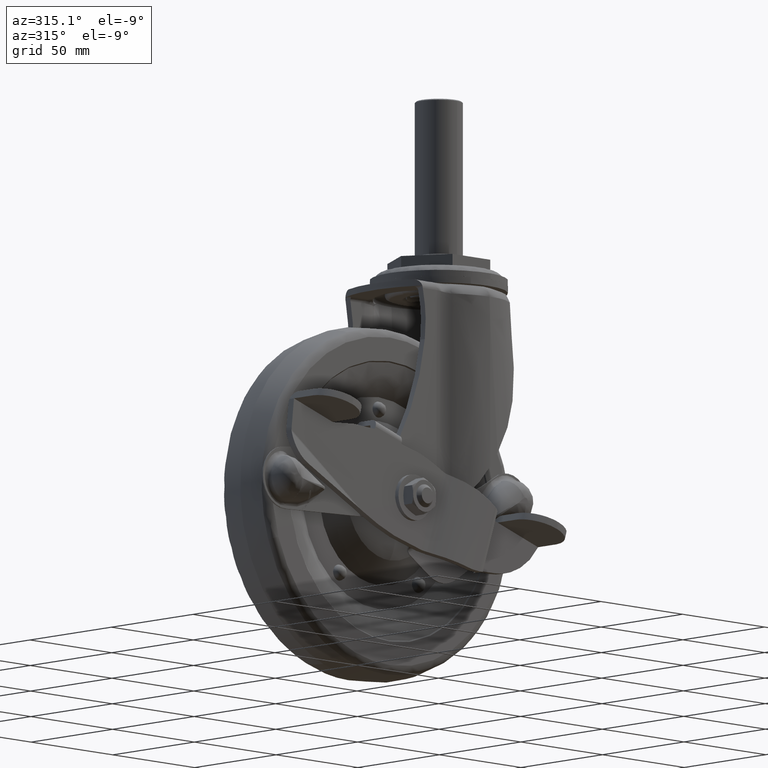
[diagram: clean part render]
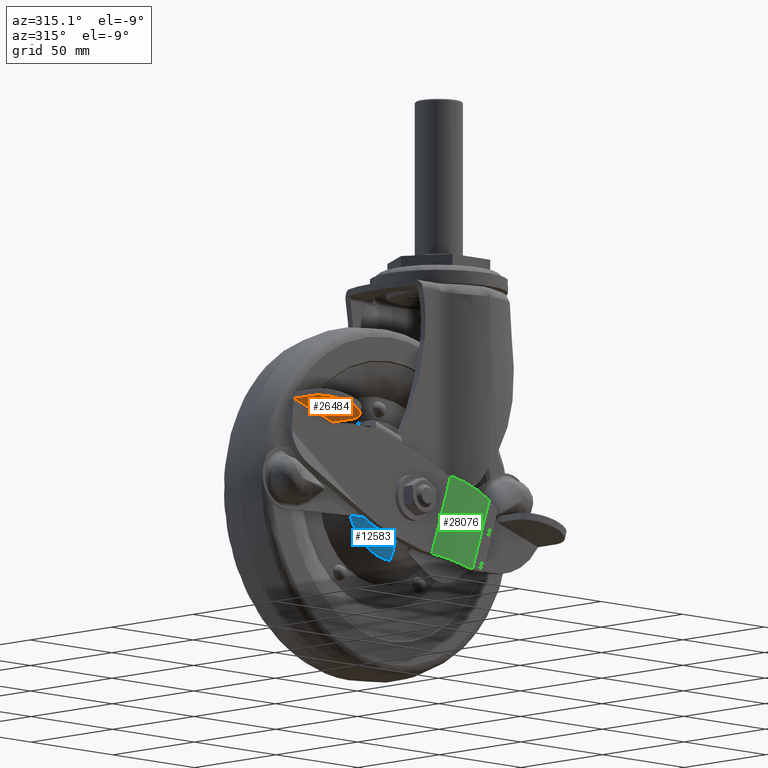
[diagram: same view with three faces highlighted in distinct colors, each labeled with its STEP entity id]
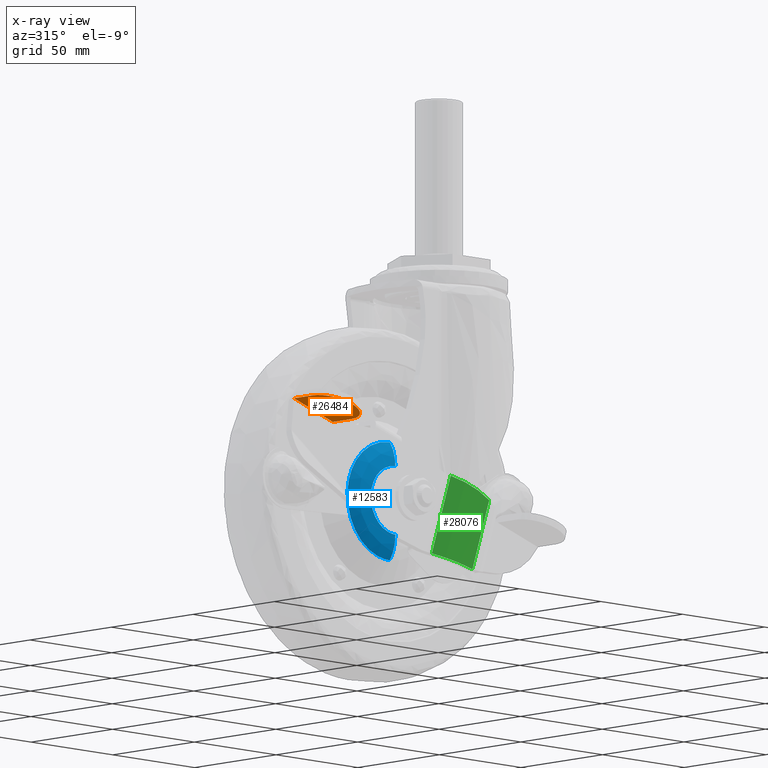
[diagram: x-ray of the same camera — body ghosted, the three highlighted faces saturated]
A machine part, auxiliary view with three faces highlighted in distinct colors.
The next image is the same camera in x-ray (body ghosted, the three faces saturated) — at least one of them is partly hidden behind the body in this view.
Their STEP definitions:

[orange] entity #26484 — the highlighted face is a freeform B-spline surface patch.
#25620=CARTESIAN_POINT('',(-92.129474000000002,-38.814340000187897,-78.709404904632464));
#25621=VERTEX_POINT('',#25620);
#25627=CARTESIAN_POINT('',(-92.129474000000002,-27.414346000187809,-78.709404904632464));
#25628=VERTEX_POINT('',#25627);
#25629=CARTESIAN_POINT('',(-92.129474000000002,-38.814340000187897,-78.709404904632464));
#25630=CARTESIAN_POINT('',(-92.129474000000002,-27.414346000187809,-78.709404904632464));
#25631=QUASI_UNIFORM_CURVE('',1,(#25629,#25630),.UNSPECIFIED.,.F.,.U.);
#25632=EDGE_CURVE('',#25621,#25628,#25631,.T.);
#25767=CARTESIAN_POINT('',(-115.898294780100600,-27.414346000187809,-70.969054591772476));
#25768=VERTEX_POINT('',#25767);
#25782=CARTESIAN_POINT('',(-115.898294780100600,-39.068292805988897,-70.969054591772576));
#25783=VERTEX_POINT('',#25782);
#25784=CARTESIAN_POINT('',(-115.898294780100600,-39.068292805988897,-70.969054591772576));
#25785=CARTESIAN_POINT('',(-115.898294780100600,-27.414346000187809,-70.969054591772476));
#25786=QUASI_UNIFORM_CURVE('',1,(#25784,#25785),.UNSPECIFIED.,.F.,.U.);
#25787=EDGE_CURVE('',#25783,#25768,#25786,.T.);
#26244=CARTESIAN_POINT('',(-104.110205045404600,-51.214340000187903,-74.807862789710768));
#26245=VERTEX_POINT('',#26244);
#26246=CARTESIAN_POINT('',(-104.110205045404600,-51.214340000187903,-74.807862789710768));
#26247=CARTESIAN_POINT('',(-115.661719023178960,-51.214340000187910,-71.046095823689086));
#26248=CARTESIAN_POINT('',(-115.898294780100600,-39.068292805982232,-70.969054591772505));
#26256=(BOUNDED_CURVE()B_SPLINE_CURVE(2,(#26246,#26247,#26248),.UNSPECIFIED.,.F.,.U.)CURVE()GEOMETRIC_REPRESENTATION_ITEM()QUASI_UNIFORM_CURVE()RATIONAL_B_SPLINE_CURVE((1.0,0.714310879443753,1.0))REPRESENTATION_ITEM(''));
#26257=EDGE_CURVE('',#26245,#25783,#26256,.T.);
#26282=CARTESIAN_POINT('',(-103.920036669879590,-51.214340000187903,-74.869791391832365));
#26283=VERTEX_POINT('',#26282);
#26284=CARTESIAN_POINT('',(-92.129474000000002,-38.814340000187897,-78.709404904632464));
#26285=CARTESIAN_POINT('',(-92.129474000001352,-51.214340000187903,-78.709404904632009));
#26286=CARTESIAN_POINT('',(-103.920036669879590,-51.214340000187903,-74.869791391832365));
#26294=(BOUNDED_CURVE()B_SPLINE_CURVE(2,(#26284,#26285,#26286),.UNSPECIFIED.,.F.,.U.)CURVE()GEOMETRIC_REPRESENTATION_ITEM()QUASI_UNIFORM_CURVE()RATIONAL_B_SPLINE_CURVE((1.0,0.707106781186547,1.0))REPRESENTATION_ITEM(''));
#26295=EDGE_CURVE('',#25621,#26283,#26294,.T.);
#26456=CARTESIAN_POINT('',(-104.110205045404600,-51.214340000187903,-74.807862789710768));
#26457=CARTESIAN_POINT('',(-103.920036669879590,-51.214340000187903,-74.869791391832365));
#26458=QUASI_UNIFORM_CURVE('',1,(#26456,#26457),.UNSPECIFIED.,.F.,.U.);
#26459=EDGE_CURVE('',#26245,#26283,#26458,.T.);
#26467=CARTESIAN_POINT('',(-117.085547331998100,-52.403149654358913,-70.582424108647487));
#26468=CARTESIAN_POINT('',(-90.942220810573119,-52.403149654358913,-79.096035595369941));
#26469=CARTESIAN_POINT('',(-117.085547331998100,-26.225535707651218,-70.582424108647487));
#26470=CARTESIAN_POINT('',(-90.942220810573119,-26.225535707651218,-79.096035595369941));
#26471=B_SPLINE_SURFACE_WITH_KNOTS('',1,1,((#26467,#26469),(#26468,#26470)),.UNSPECIFIED.,.F.,.F.,.U.,(2,2),(2,2),(0.0,27.494637698152960),(0.0,26.177613946707680),.UNSPECIFIED.);
#26472=ORIENTED_EDGE('',*,*,#26257,.T.);
#26473=ORIENTED_EDGE('',*,*,#25787,.T.);
#26474=CARTESIAN_POINT('',(-92.129474000000002,-27.414346000187809,-78.709404904632464));
#26475=CARTESIAN_POINT('',(-115.898294780100600,-27.414346000187809,-70.969054591772476));
#26476=QUASI_UNIFORM_CURVE('',1,(#26474,#26475),.UNSPECIFIED.,.F.,.U.);
#26477=EDGE_CURVE('',#25628,#25768,#26476,.T.);
#26478=ORIENTED_EDGE('',*,*,#26477,.F.);
#26479=ORIENTED_EDGE('',*,*,#25632,.F.);
#26480=ORIENTED_EDGE('',*,*,#26295,.T.);
#26481=ORIENTED_EDGE('',*,*,#26459,.F.);
#26482=EDGE_LOOP('',(#26472,#26473,#26478,#26479,#26480,#26481));
#26483=FACE_OUTER_BOUND('',#26482,.T.);
#26484=ADVANCED_FACE('',(#26483),#26471,.F.);

[blue] entity #12583 — the highlighted face is a freeform B-spline surface patch.
#12342=CARTESIAN_POINT('',(-44.0,-17.499999502667020,-91.599967578983950));
#12343=VERTEX_POINT('',#12342);
#12357=CARTESIAN_POINT('',(-44.941858301191040,-17.499999941313131,-121.570408908457690));
#12358=VERTEX_POINT('',#12357);
#12359=CARTESIAN_POINT('',(-44.0,-17.499999502667020,-91.599967578983950));
#12360=CARTESIAN_POINT('',(-44.901921087579403,-17.499999503080549,-91.599908563532111));
#12361=CARTESIAN_POINT('',(-46.826158574192021,-17.499999506509049,-91.773926232665247));
#12362=CARTESIAN_POINT('',(-49.380261556546017,-17.499999518527691,-92.515648452284452));
#12363=CARTESIAN_POINT('',(-51.760798926003950,-17.499999536737480,-93.686259085619540));
#12364=CARTESIAN_POINT('',(-53.923998670393203,-17.499999560279601,-95.228387518719757));
#12365=CARTESIAN_POINT('',(-55.671206929986077,-17.499999588014639,-97.070333836546283));
#12366=CARTESIAN_POINT('',(-57.160499973540190,-17.499999620759802,-99.263070128077217));
#12367=CARTESIAN_POINT('',(-58.254317234753088,-17.499999655737689,-101.620928019949700));
#12368=CARTESIAN_POINT('',(-58.889394697220332,-17.499999694677911,-104.264130812447310));
#12369=CARTESIAN_POINT('',(-59.056034179202122,-17.499999730811549,-106.730252113387910));
#12370=CARTESIAN_POINT('',(-58.836716619052098,-17.499999769383109,-109.375061041200200));
#12371=CARTESIAN_POINT('',(-58.030634656419927,-17.499999810743901,-112.229169846793890));
#12372=CARTESIAN_POINT('',(-56.460926070372601,-17.499999852874321,-115.159945948851400));
#12373=CARTESIAN_POINT('',(-54.413644819615101,-17.499999886887899,-117.550495756210490));
#12374=CARTESIAN_POINT('',(-52.204817356564263,-17.499999910529461,-119.236813691969900));
#12375=CARTESIAN_POINT('',(-49.864914570249489,-17.499999927693469,-120.484232187667100));
#12376=CARTESIAN_POINT('',(-47.513558658840338,-17.499999938060188,-121.267119250987190));
#12377=CARTESIAN_POINT('',(-45.722025248742192,-17.499999940954229,-121.521349625450300));
#12378=CARTESIAN_POINT('',(-44.941858301191040,-17.499999941313131,-121.570408908457690));
#12379=B_SPLINE_CURVE_WITH_KNOTS('',3,(#12359,#12360,#12361,#12362,#12363,#12364,#12365,#12366,#12367,#12368,#12369,#12370,#12371,#12372,#12373,#12374,#12375,#12376,#12377,#12378),.UNSPECIFIED.,.F.,.U.,(4,1,1,1,1,1,1,1,1,1,1,1,1,1,1,1,1,4),(0.000000695172545,2.705790715378683,5.772703789935591,7.937446255766581,10.643434237916720,13.710236314648160,15.514256951850969,18.581065654805471,21.467345415096140,23.631917005521601,25.977073857504390,29.404665966659561,32.471472628157713,35.899085132675182,38.785471824742153,40.769900286836062,43.836566275867767,46.181721162794432),.UNSPECIFIED.);
#12380=EDGE_CURVE('',#12343,#12358,#12379,.T.);
#12437=CARTESIAN_POINT('',(-44.0,-17.499999502708079,-121.600016106663700));
#12438=VERTEX_POINT('',#12437);
#12466=CARTESIAN_POINT('',(-44.941858301191033,-17.499999941313131,-121.570408908457690));
#12467=CARTESIAN_POINT('',(-44.471394246274983,-17.499999722010617,-121.600012100049200));
#12468=CARTESIAN_POINT('',(-44.0,-17.499999502708079,-121.600016106663700));
#12476=(BOUNDED_CURVE()B_SPLINE_CURVE(2,(#12466,#12467,#12468),.UNSPECIFIED.,.F.,.U.)B_SPLINE_CURVE_WITH_KNOTS((3,3),(0.989031899110970,1.0),.UNSPECIFIED.)CURVE()GEOMETRIC_REPRESENTATION_ITEM()RATIONAL_B_SPLINE_CURVE((0.975427655595643,0.987150070505365,1.0))REPRESENTATION_ITEM(''));
#12477=EDGE_CURVE('',#12358,#12438,#12476,.T.);
#12482=CARTESIAN_POINT('',(-44.0,-17.490433139216837,-92.203402319591675));
#12483=CARTESIAN_POINT('',(-44.0,-17.601272591521621,-88.708474578270582));
#12484=CARTESIAN_POINT('',(-44.0,-16.462814349502530,-85.402310920430622));
#12485=CARTESIAN_POINT('',(-44.0,-15.492584422339801,-82.584694246809718));
#12486=CARTESIAN_POINT('',(-44.0,-13.707694990601633,-80.198383381164192));
#12487=CARTESIAN_POINT('',(-58.396597585040936,-17.490433139216837,-92.203402319591646));
#12488=CARTESIAN_POINT('',(-61.891525326362014,-17.601272591521624,-88.708474578270597));
#12489=CARTESIAN_POINT('',(-65.197688984201946,-16.462814349502544,-85.402310920430622));
#12490=CARTESIAN_POINT('',(-68.015305657822822,-15.492584422339803,-82.584694246809718));
#12491=CARTESIAN_POINT('',(-70.401616523468391,-13.707694990601635,-80.198383381164163));
#12492=CARTESIAN_POINT('',(-58.396597585040936,-17.490433139216837,-106.599999904632580));
#12493=CARTESIAN_POINT('',(-61.891525326362007,-17.601272591521621,-106.599999904632580));
#12494=CARTESIAN_POINT('',(-65.197688984201946,-16.462814349502530,-106.599999904632600));
#12495=CARTESIAN_POINT('',(-68.015305657822836,-15.492584422339801,-106.599999904632530));
#12496=CARTESIAN_POINT('',(-70.401616523468391,-13.707694990601633,-106.599999904632580));
#12497=CARTESIAN_POINT('',(-58.396597585040936,-17.490433139216837,-120.996597489673520));
#12498=CARTESIAN_POINT('',(-61.891525326362014,-17.601272591521624,-124.491525230994580));
#12499=CARTESIAN_POINT('',(-65.197688984201946,-16.462814349502544,-127.797688888834530));
#12500=CARTESIAN_POINT('',(-68.015305657822822,-15.492584422339803,-130.615305562455400));
#12501=CARTESIAN_POINT('',(-70.401616523468391,-13.707694990601635,-133.001616428100930));
#12502=CARTESIAN_POINT('',(-44.0,-17.490433139216837,-120.996597489673530));
#12503=CARTESIAN_POINT('',(-44.0,-17.601272591521621,-124.491525230994630));
#12504=CARTESIAN_POINT('',(-44.0,-16.462814349502530,-127.797688888834500));
#12505=CARTESIAN_POINT('',(-44.0,-15.492584422339801,-130.615305562455430));
#12506=CARTESIAN_POINT('',(-44.0,-13.707694990601633,-133.001616428100960));
#12514=(BOUNDED_SURFACE()B_SPLINE_SURFACE(2,2,((#12482,#12487,#12492,#12497,#12502),(#12483,#12488,#12493,#12498,#12503),(#12484,#12489,#12494,#12499,#12504),(#12485,#12490,#12495,#12500,#12505),(#12486,#12491,#12496,#12501,#12506)),.UNSPECIFIED.,.F.,.F.,.U.)B_SPLINE_SURFACE_WITH_KNOTS((3,2,3),(3,2,3),(0.0,7.162881758662016,13.317823276967189),(0.0,43.743630530376862,87.487261060753724),.UNSPECIFIED.)GEOMETRIC_REPRESENTATION_ITEM()RATIONAL_B_SPLINE_SURFACE(((0.922115106699478,0.652033844981758,0.922115106699478,0.652033844981758,0.922115106699478),(0.944466210566666,0.667838462093251,0.944466210566666,0.667838462093251,0.944466210566666),(1.0,0.707106781186548,1.0,0.707106781186548,1.0),(0.952280766628781,0.673364187676735,0.952280766628781,0.673364187676735,0.952280766628781),(0.929062534321500,0.656946418165092,0.929062534321500,0.656946418165092,0.929062534321500)))REPRESENTATION_ITEM('')SURFACE());
#12515=CARTESIAN_POINT('',(-44.0,-14.058730150290041,-80.683421322373988));
#12516=VERTEX_POINT('',#12515);
#12517=CARTESIAN_POINT('',(-44.000000000000007,-17.499999502667013,-91.599967578983950));
#12518=CARTESIAN_POINT('',(-44.0,-17.499993959546451,-88.414353159682875));
#12519=CARTESIAN_POINT('',(-44.0,-16.462814578883108,-85.402310920444734));
#12520=CARTESIAN_POINT('',(-44.0,-15.592209505674496,-82.874012245125670));
#12521=CARTESIAN_POINT('',(-44.0,-14.058730150290039,-80.683421322373988));
#12529=(BOUNDED_CURVE()B_SPLINE_CURVE(2,(#12517,#12518,#12519,#12520,#12521),.UNSPECIFIED.,.F.,.U.)B_SPLINE_CURVE_WITH_KNOTS((3,2,3),(0.181616419026654,0.250000000000000,0.307873544497518),.UNSPECIFIED.)CURVE()GEOMETRIC_REPRESENTATION_ITEM()RATIONAL_B_SPLINE_CURVE((0.926126273306221,0.949155390871531,1.0,0.956969820723453,0.933862113407685))REPRESENTATION_ITEM(''));
#12530=EDGE_CURVE('',#12343,#12516,#12529,.T.);
#12531=ORIENTED_EDGE('',*,*,#12530,.T.);
#12532=CARTESIAN_POINT('',(-69.836714954527864,-14.058722103516891,-104.566606337751490));
#12533=VERTEX_POINT('',#12532);
#12534=CARTESIAN_POINT('',(-44.0,-14.058730150290041,-80.683421322373988));
#12535=CARTESIAN_POINT('',(-67.957065371407296,-14.058726126770447,-80.683421543352210));
#12536=CARTESIAN_POINT('',(-69.836714954527864,-14.058722103516891,-104.566606337751450));
#12544=(BOUNDED_CURVE()B_SPLINE_CURVE(2,(#12534,#12535,#12536),.UNSPECIFIED.,.F.,.U.)B_SPLINE_CURVE_WITH_KNOTS((3,3),(0.500000000000000,0.736331282794455),.UNSPECIFIED.)CURVE()GEOMETRIC_REPRESENTATION_ITEM()RATIONAL_B_SPLINE_CURVE((1.0,0.723120679504079,0.969723318944623))REPRESENTATION_ITEM(''));
#12545=EDGE_CURVE('',#12516,#12533,#12544,.T.);
#12546=ORIENTED_EDGE('',*,*,#12545,.T.);
#12547=CARTESIAN_POINT('',(-44.0,-14.058730150846021,-132.516578486096900));
#12548=VERTEX_POINT('',#12547);
#12549=CARTESIAN_POINT('',(-69.836714954527864,-14.058722103516885,-104.566606337751420));
#12550=CARTESIAN_POINT('',(-69.916607536900869,-14.058722249659386,-105.581733841899510));
#12551=CARTESIAN_POINT('',(-69.916607647218996,-14.058722407754651,-106.600000329483290));
#12552=CARTESIAN_POINT('',(-69.916610454999059,-14.058726431542372,-132.516578690367110));
#12553=CARTESIAN_POINT('',(-44.0,-14.058730150846021,-132.516578486096900));
#12561=(BOUNDED_CURVE()B_SPLINE_CURVE(2,(#12549,#12550,#12551,#12552,#12553),.UNSPECIFIED.,.F.,.U.)B_SPLINE_CURVE_WITH_KNOTS((3,2,3),(0.736331282794455,0.750000000000000,1.0),.UNSPECIFIED.)CURVE()GEOMETRIC_REPRESENTATION_ITEM()RATIONAL_B_SPLINE_CURVE((0.969723318944623,0.983986101682469,1.0,0.707106781186547,1.0))REPRESENTATION_ITEM(''));
#12562=EDGE_CURVE('',#12533,#12548,#12561,.T.);
#12563=ORIENTED_EDGE('',*,*,#12562,.T.);
#12564=CARTESIAN_POINT('',(-44.0,-17.499999502708079,-121.600016106663660));
#12565=CARTESIAN_POINT('',(-44.0,-17.499996657851757,-124.785638813554910));
#12566=CARTESIAN_POINT('',(-44.0,-16.462814578892150,-127.797688888820200));
#12567=CARTESIAN_POINT('',(-44.0,-15.592209505839838,-130.325987563671990));
#12568=CARTESIAN_POINT('',(-44.0,-14.058730150846021,-132.516578486096930));
#12576=(BOUNDED_CURVE()B_SPLINE_CURVE(2,(#12564,#12565,#12566,#12567,#12568),.UNSPECIFIED.,.F.,.U.)B_SPLINE_CURVE_WITH_KNOTS((3,2,3),(0.181616250167749,0.250000000000000,0.307873544487280),.UNSPECIFIED.)CURVE()GEOMETRIC_REPRESENTATION_ITEM()RATIONAL_B_SPLINE_CURVE((0.926126159575242,0.949155265321437,1.0,0.956969820731065,0.933862113415861))REPRESENTATION_ITEM(''));
#12577=EDGE_CURVE('',#12438,#12548,#12576,.T.);
#12578=ORIENTED_EDGE('',*,*,#12577,.F.);
#12579=ORIENTED_EDGE('',*,*,#12477,.F.);
#12580=ORIENTED_EDGE('',*,*,#12380,.F.);
#12581=EDGE_LOOP('',(#12531,#12546,#12563,#12578,#12579,#12580));
#12582=FACE_OUTER_BOUND('',#12581,.T.);
#12583=ADVANCED_FACE('',(#12582),#12514,.T.);

[green] entity #28076 — the highlighted face is a freeform B-spline surface patch.
#26643=CARTESIAN_POINT('',(-21.424329070959850,-28.774348000187750,-94.524131622860580));
#26644=VERTEX_POINT('',#26643);
#26654=CARTESIAN_POINT('',(-3.276651337738540,-34.214356000187657,-103.837771467539600));
#26655=VERTEX_POINT('',#26654);
#26656=CARTESIAN_POINT('',(-3.276651337738535,-34.214356000187713,-103.837771467539600));
#26657=CARTESIAN_POINT('',(-4.782923135929201,-34.214356000187713,-102.860672649204600));
#26658=CARTESIAN_POINT('',(-6.298017628416245,-34.101949473407423,-101.934943035419810));
#26659=CARTESIAN_POINT('',(-9.342924394872192,-33.652783713215868,-100.180875518726910));
#26660=CARTESIAN_POINT('',(-10.872749914668370,-33.316050555870618,-99.352552864319364));
#26661=CARTESIAN_POINT('',(-12.791717158359329,-32.748407008097807,-98.375621190317659));
#26662=CARTESIAN_POINT('',(-13.175841496485869,-32.627513487248841,-98.183161474314431));
#26663=CARTESIAN_POINT('',(-13.752465687692940,-32.434913435390193,-97.898825144936438));
#26664=CARTESIAN_POINT('',(-13.944746644554360,-32.368836382256433,-97.804771942333502));
#26665=CARTESIAN_POINT('',(-14.329443878531650,-32.232887694199839,-97.618110958143603));
#26666=CARTESIAN_POINT('',(-14.521797162951099,-32.163034499782569,-97.525535250196413));
#26667=CARTESIAN_POINT('',(-15.480645404178530,-31.805426785318300,-97.067778117231569));
#26668=CARTESIAN_POINT('',(-16.240923705974559,-31.491791983266559,-96.716720041780306));
#26669=CARTESIAN_POINT('',(-18.500442149050290,-30.468744507254300,-95.706329458711153));
#26670=CARTESIAN_POINT('',(-19.978502401674881,-29.677541497539892,-95.089700091358566));
#26671=CARTESIAN_POINT('',(-21.424329070959850,-28.774348000187750,-94.524131622860580));
#26672=B_SPLINE_CURVE_WITH_KNOTS('',3,(#26656,#26657,#26658,#26659,#26660,#26661,#26662,#26663,#26664,#26665,#26666,#26667,#26668,#26669,#26670,#26671),.UNSPECIFIED.,.F.,.U.,(4,2,2,2,2,2,2,4),(0.0,0.249999999999999,0.499999999999999,0.562499999999999,0.593749999999999,0.624999999999999,0.749999999999999,1.0),.UNSPECIFIED.);
#26673=EDGE_CURVE('',#26655,#26644,#26672,.T.);
#26942=CARTESIAN_POINT('',(-32.941757378374447,-28.774348000187750,-129.891490142430600));
#26943=VERTEX_POINT('',#26942);
#26994=CARTESIAN_POINT('',(-14.842744979084801,-34.191179959931951,-134.957777696676000));
#26995=VERTEX_POINT('',#26994);
#27001=CARTESIAN_POINT('',(-14.842744979085071,-34.191179959931951,-134.957777696675890));
#27002=CARTESIAN_POINT('',(-24.549908120080929,-33.848186648106058,-132.240542152365920));
#27003=CARTESIAN_POINT('',(-32.941757378374483,-28.774348000187739,-129.891490142430600));
#27011=(BOUNDED_CURVE()B_SPLINE_CURVE(2,(#27001,#27002,#27003),.UNSPECIFIED.,.F.,.U.)CURVE()GEOMETRIC_REPRESENTATION_ITEM()QUASI_UNIFORM_CURVE()RATIONAL_B_SPLINE_CURVE((1.0,0.969700000593737,1.0))REPRESENTATION_ITEM(''));
#27012=EDGE_CURVE('',#26995,#26943,#27011,.T.);
#28031=CARTESIAN_POINT('',(-21.424329070959850,-28.774348000187750,-94.524131622860580));
#28032=CARTESIAN_POINT('',(-32.941757378374447,-28.774348000187750,-129.891490142430600));
#28033=QUASI_UNIFORM_CURVE('',1,(#28031,#28032),.UNSPECIFIED.,.F.,.U.);
#28034=EDGE_CURVE('',#26644,#26943,#28033,.T.);
#28043=CARTESIAN_POINT('',(-13.092896965409919,-34.200886930718347,-137.333249094580420));
#28044=CARTESIAN_POINT('',(-0.992398849932455,-34.200886930718347,-100.175418049957290));
#28045=CARTESIAN_POINT('',(-24.431573335830805,-34.510424241094945,-133.640793744118350));
#28046=CARTESIAN_POINT('',(-12.331075220353334,-34.510424241094945,-96.482962699495133));
#28047=CARTESIAN_POINT('',(-34.079369053616766,-28.237893605253792,-130.498975973286150));
#28048=CARTESIAN_POINT('',(-21.978870938139288,-28.237893605253792,-93.341144928662843));
#28056=(BOUNDED_SURFACE()B_SPLINE_SURFACE(1,2,((#28043,#28045,#28047),(#28044,#28046,#28048)),.UNSPECIFIED.,.F.,.F.,.U.)B_SPLINE_SURFACE_WITH_KNOTS((2,2),(3,3),(0.0,39.078465458401013),(0.0,23.349430423039280),.UNSPECIFIED.)GEOMETRIC_REPRESENTATION_ITEM()RATIONAL_B_SPLINE_SURFACE(((0.999832246126775,0.956106005479294,0.995604418796810),(0.999832246126775,0.956106005479294,0.995604418796810)))REPRESENTATION_ITEM('')SURFACE());
#28057=CARTESIAN_POINT('',(-13.516095284474879,-34.214356000187657,-135.280735594533810));
#28058=VERTEX_POINT('',#28057);
#28059=CARTESIAN_POINT('',(-3.276651337738540,-34.214356000187657,-103.837771467539600));
#28060=CARTESIAN_POINT('',(-13.516095284474879,-34.214356000187657,-135.280735594533810));
#28061=QUASI_UNIFORM_CURVE('',1,(#28059,#28060),.UNSPECIFIED.,.F.,.U.);
#28062=EDGE_CURVE('',#26655,#28058,#28061,.T.);
#28063=ORIENTED_EDGE('',*,*,#28062,.F.);
#28064=ORIENTED_EDGE('',*,*,#26673,.T.);
#28065=ORIENTED_EDGE('',*,*,#28034,.T.);
#28066=ORIENTED_EDGE('',*,*,#27012,.F.);
#28067=CARTESIAN_POINT('',(-14.842744979084801,-34.191179959932050,-134.957777696676000));
#28068=CARTESIAN_POINT('',(-14.404332268662170,-34.206670854163292,-135.080498571106890));
#28069=CARTESIAN_POINT('',(-13.962117164998300,-34.214356000187713,-135.188160090959800));
#28070=CARTESIAN_POINT('',(-13.516095284474900,-34.214356000187713,-135.280735594533810));
#28071=QUASI_UNIFORM_CURVE('',3,(#28067,#28068,#28069,#28070),.UNSPECIFIED.,.F.,.U.);
#28072=EDGE_CURVE('',#26995,#28058,#28071,.T.);
#28073=ORIENTED_EDGE('',*,*,#28072,.T.);
#28074=EDGE_LOOP('',(#28063,#28064,#28065,#28066,#28073));
#28075=FACE_OUTER_BOUND('',#28074,.T.);
#28076=ADVANCED_FACE('',(#28075),#28056,.T.);